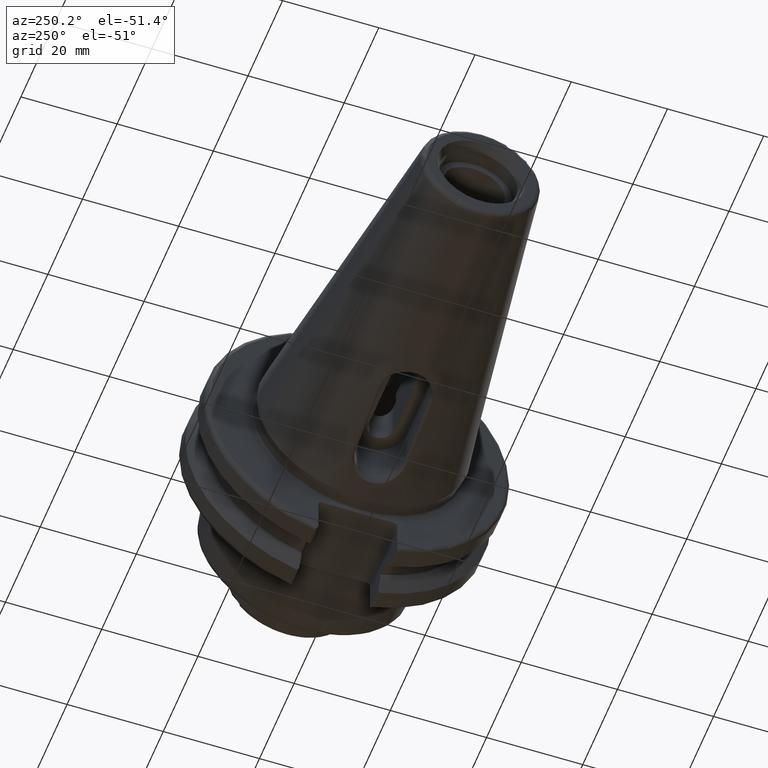
[diagram: clean part render]
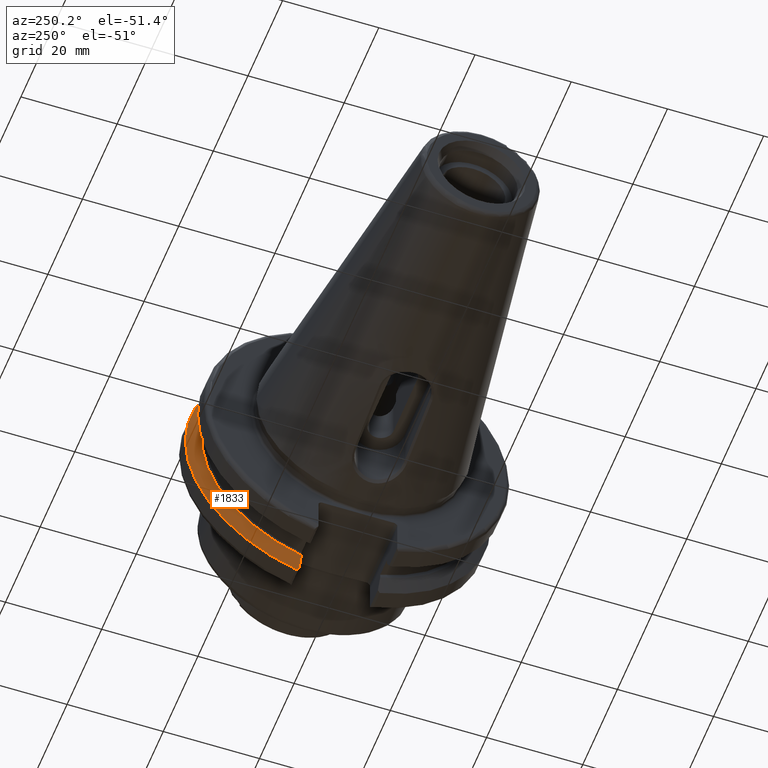
[diagram: same view with one face highlighted and labeled with its STEP entity id]
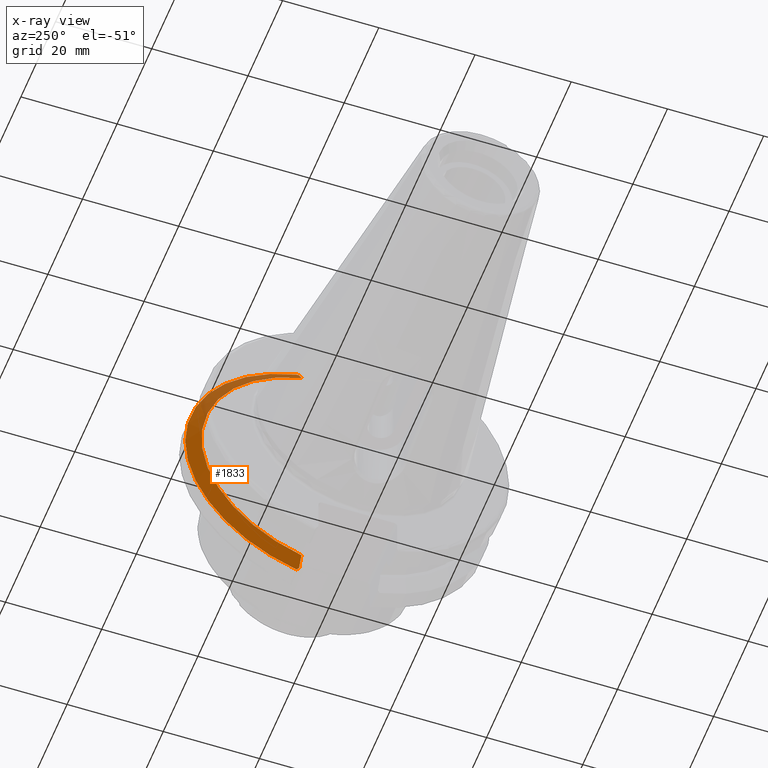
[diagram: x-ray of the same camera — body ghosted, the highlighted face saturated]
A machine part, auxiliary view. The second image highlights one B-rep face of the part: STEP entity #1833.
The next image is the same camera in x-ray: the body ghosted, the highlighted face saturated — about 19% of this face is hidden behind the body in this view.
In plain terms, the highlighted conical surface has half-angle 60 deg.
Its self-contained STEP definition (entity closure, byte-faithful):
#19=(
BOUNDED_CURVE()
B_SPLINE_CURVE(2,(#3528,#3529,#3530),.UNSPECIFIED.,.F.,.F.)
B_SPLINE_CURVE_WITH_KNOTS((3,3),(0.329353533631224,0.393258405001022),
 .UNSPECIFIED.)
CURVE()
GEOMETRIC_REPRESENTATION_ITEM()
RATIONAL_B_SPLINE_CURVE((1.00047644010598,1.00028444218298,1.))
REPRESENTATION_ITEM('')
);
#21=(
BOUNDED_CURVE()
B_SPLINE_CURVE(2,(#3555,#3556,#3557),.UNSPECIFIED.,.F.,.F.)
B_SPLINE_CURVE_WITH_KNOTS((3,3),(0.0550586467388169,0.33160778953585),
 .UNSPECIFIED.)
CURVE()
GEOMETRIC_REPRESENTATION_ITEM()
RATIONAL_B_SPLINE_CURVE((1.00031614444917,1.00095203903631,1.))
REPRESENTATION_ITEM('')
);
#29=(
BOUNDED_CURVE()
B_SPLINE_CURVE(2,(#3753,#3754,#3755),.UNSPECIFIED.,.F.,.F.)
B_SPLINE_CURVE_WITH_KNOTS((3,3),(0.,0.276549142797025),.UNSPECIFIED.)
CURVE()
GEOMETRIC_REPRESENTATION_ITEM()
RATIONAL_B_SPLINE_CURVE((1.,1.0009520390361,1.0003161444491))
REPRESENTATION_ITEM('')
);
#33=(
BOUNDED_CURVE()
B_SPLINE_CURVE(2,(#3792,#3793,#3794),.UNSPECIFIED.,.F.,.F.)
B_SPLINE_CURVE_WITH_KNOTS((3,3),(0.,0.0639048713675822),.UNSPECIFIED.)
CURVE()
GEOMETRIC_REPRESENTATION_ITEM()
RATIONAL_B_SPLINE_CURVE((1.,1.00028444218292,1.00047644010589))
REPRESENTATION_ITEM('')
);
#387=CONICAL_SURFACE('',#2013,30.3546886482472,1.0471975511966);
#535=FACE_OUTER_BOUND('',#644,.T.);
#644=EDGE_LOOP('',(#1702,#1703,#1704,#1705,#1706,#1707));
#713=CIRCLE('',#1988,31.75);
#723=CIRCLE('',#2011,28.9593772964944);
#844=VERTEX_POINT('',#3525);
#845=VERTEX_POINT('',#3527);
#852=VERTEX_POINT('',#3553);
#890=VERTEX_POINT('',#3750);
#891=VERTEX_POINT('',#3752);
#899=VERTEX_POINT('',#3782);
#1077=EDGE_CURVE('',#844,#845,#19,.T.);
#1087=EDGE_CURVE('',#844,#852,#21,.T.);
#1145=EDGE_CURVE('',#891,#890,#29,.T.);
#1157=EDGE_CURVE('',#845,#899,#713,.T.);
#1161=EDGE_CURVE('',#899,#890,#33,.T.);
#1173=EDGE_CURVE('',#852,#891,#723,.T.);
#1702=ORIENTED_EDGE('',*,*,#1077,.F.);
#1703=ORIENTED_EDGE('',*,*,#1087,.T.);
#1704=ORIENTED_EDGE('',*,*,#1173,.T.);
#1705=ORIENTED_EDGE('',*,*,#1145,.T.);
#1706=ORIENTED_EDGE('',*,*,#1161,.F.);
#1707=ORIENTED_EDGE('',*,*,#1157,.F.);
#1833=ADVANCED_FACE('',(#535),#387,.T.);
#1988=AXIS2_PLACEMENT_3D('',#3783,#2394,#2395);
#2011=AXIS2_PLACEMENT_3D('',#3821,#2443,#2444);
#2013=AXIS2_PLACEMENT_3D('',#3823,#2447,#2448);
#2394=DIRECTION('center_axis',(1.,0.,0.));
#2395=DIRECTION('ref_axis',(0.,0.,-1.));
#2443=DIRECTION('center_axis',(1.,0.,0.));
#2444=DIRECTION('ref_axis',(0.,0.,-1.));
#2447=DIRECTION('center_axis',(1.,0.,0.));
#2448=DIRECTION('ref_axis',(0.,1.,0.));
#3525=CARTESIAN_POINT('',(14.3744146964874,8.19,-30.1755016258903));
#3527=CARTESIAN_POINT('',(14.6531667690756,8.67204822802685,-30.5427254764662));
#3528=CARTESIAN_POINT('Ctrl Pts',(14.3744146964874,8.19,-30.1755016258903));
#3529=CARTESIAN_POINT('Ctrl Pts',(14.5121085187884,8.42917748263461,-30.3577067892692));
#3530=CARTESIAN_POINT('Ctrl Pts',(14.6531667690756,8.67204822802686,-30.5427254764662));
#3553=CARTESIAN_POINT('',(13.042,8.19,-27.7771386827498));
#3555=CARTESIAN_POINT('Ctrl Pts',(14.3744146964874,8.19,-30.1755016258903));
#3556=CARTESIAN_POINT('Ctrl Pts',(13.6806364384668,8.19,-28.9303689539538));
#3557=CARTESIAN_POINT('Ctrl Pts',(13.042,8.19,-27.7771386827498));
#3750=CARTESIAN_POINT('',(14.3744146964874,8.19,30.1755016258903));
#3752=CARTESIAN_POINT('',(13.042,8.19,27.7771386827498));
#3753=CARTESIAN_POINT('Ctrl Pts',(13.042,8.19,27.7771386827498));
#3754=CARTESIAN_POINT('Ctrl Pts',(13.6806364384667,8.19,28.9303689539537));
#3755=CARTESIAN_POINT('Ctrl Pts',(14.3744146964874,8.19,30.1755016258903));
#3782=CARTESIAN_POINT('',(14.6531667690756,8.67204822802685,30.5427254764662));
#3783=CARTESIAN_POINT('Origin',(14.6531667690756,0.,0.));
#3792=CARTESIAN_POINT('Ctrl Pts',(14.6531667690756,8.67204822802686,30.5427254764662));
#3793=CARTESIAN_POINT('Ctrl Pts',(14.5121085187837,8.42917748262643,30.357706789263));
#3794=CARTESIAN_POINT('Ctrl Pts',(14.3744146964874,8.19,30.1755016258903));
#3821=CARTESIAN_POINT('Origin',(13.042,0.,0.));
#3823=CARTESIAN_POINT('Origin',(13.8475833845378,0.,0.));